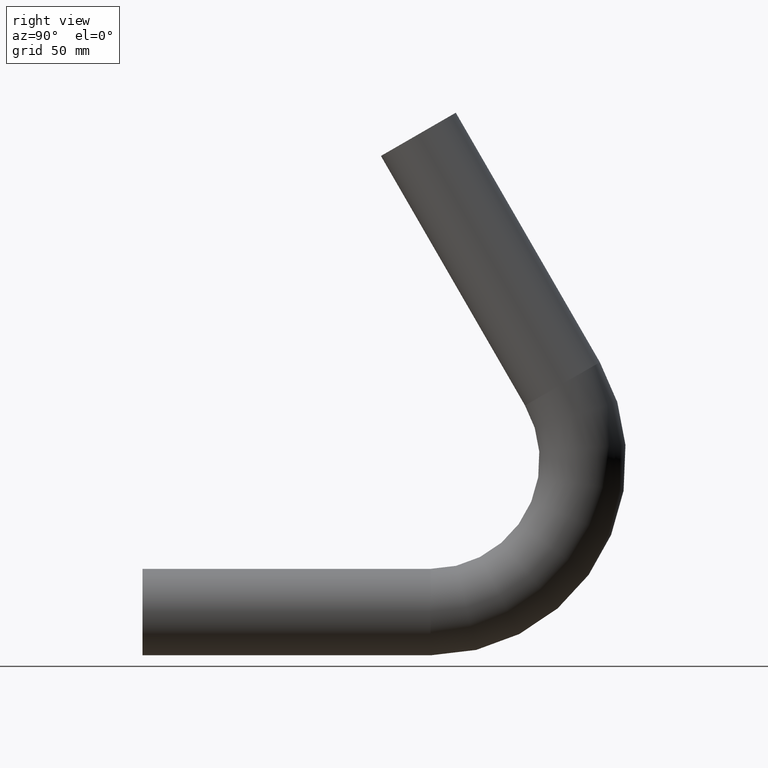
[diagram: clean part render]
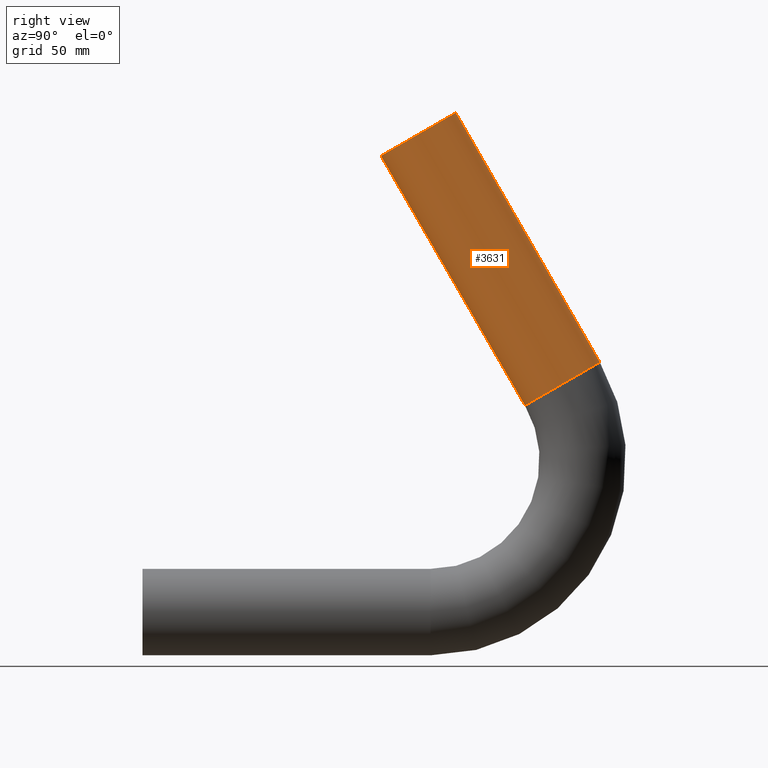
[diagram: same view with one face highlighted and labeled with its STEP entity id]
A machine part, right view. The second image highlights one B-rep face of the part: STEP entity #3631.
In plain terms, the highlighted cylindrical surface (bore or boss wall) has radius 24.15 mm, axis along (0, -0.5, 0.866).
Its self-contained STEP definition (entity closure, byte-faithful):
#459 = EDGE_LOOP ( 'NONE', ( #9864 ) ) ;
#665 = CYLINDRICAL_SURFACE ( 'NONE', #10980, 24.15000000000000568 ) ;
#1751 = VERTEX_POINT ( 'NONE', #4956 ) ;
#2581 = CARTESIAN_POINT ( 'NONE',  ( 0.000000000000000000, 234.6003674699661588, 127.5000000000003411 ) ) ;
#2651 = VERTEX_POINT ( 'NONE', #11609 ) ;
#2762 = DIRECTION ( 'NONE',  ( 0.000000000000000000, -0.5000000000000041078, 0.8660254037844363761 ) ) ;
#2763 = ORIENTED_EDGE ( 'NONE', *, *, #9418, .F. ) ;
#3333 = AXIS2_PLACEMENT_3D ( 'NONE', #12318, #4819, #6559 ) ;
#3541 = FACE_OUTER_BOUND ( 'NONE', #4372, .T. ) ;
#3631 = ADVANCED_FACE ( 'NONE', ( #4285, #3541 ), #665, .T. ) ;
#4091 = CIRCLE ( 'NONE', #3333, 24.15000000000001279 ) ;
#4285 = FACE_OUTER_BOUND ( 'NONE', #459, .T. ) ;
#4372 = EDGE_LOOP ( 'NONE', ( #2763 ) ) ;
#4819 = DIRECTION ( 'NONE',  ( 0.000000000000000000, -0.5000000000000041078, 0.8660254037844364872 ) ) ;
#4956 = CARTESIAN_POINT ( 'NONE',  ( 0.000000000000000000, 213.6858539685720189, 115.4250000000002387 ) ) ;
#6523 = DIRECTION ( 'NONE',  ( 0.000000000000000000, -0.8660254037844363761, -0.5000000000000039968 ) ) ;
#6559 = DIRECTION ( 'NONE',  ( 0.000000000000000000, -0.8660254037844361541, -0.5000000000000044409 ) ) ;
#8185 = EDGE_CURVE ( 'NONE', #1751, #1751, #10249, .T. ) ;
#9418 = EDGE_CURVE ( 'NONE', #2651, #2651, #4091, .T. ) ;
#9473 = DIRECTION ( 'NONE',  ( 0.000000000000000000, -0.8660254037844363761, -0.5000000000000039968 ) ) ;
#9691 = AXIS2_PLACEMENT_3D ( 'NONE', #2581, #11165, #6523 ) ;
#9864 = ORIENTED_EDGE ( 'NONE', *, *, #8185, .T. ) ;
#10249 = CIRCLE ( 'NONE', #9691, 24.15000000000000568 ) ;
#10433 = CARTESIAN_POINT ( 'NONE',  ( 0.000000000000000000, 234.6003674699661588, 127.5000000000003411 ) ) ;
#10980 = AXIS2_PLACEMENT_3D ( 'NONE', #10433, #2762, #9473 ) ;
#11165 = DIRECTION ( 'NONE',  ( 0.000000000000000000, -0.5000000000000041078, 0.8660254037844364872 ) ) ;
#11609 = CARTESIAN_POINT ( 'NONE',  ( 0.000000000000000000, 133.1917498944268345, 254.8448779661551384 ) ) ;
#12318 = CARTESIAN_POINT ( 'NONE',  ( 0.000000000000000000, 154.1062633958209744, 266.9198779661552408 ) ) ;